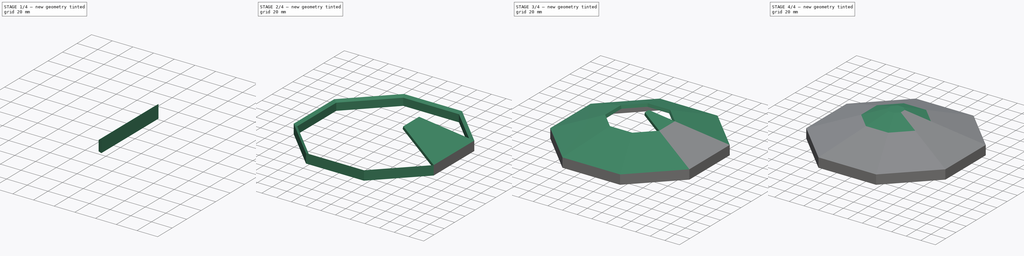
[diagram: build sequence overview — one tinted view per stage of 4, left to right]
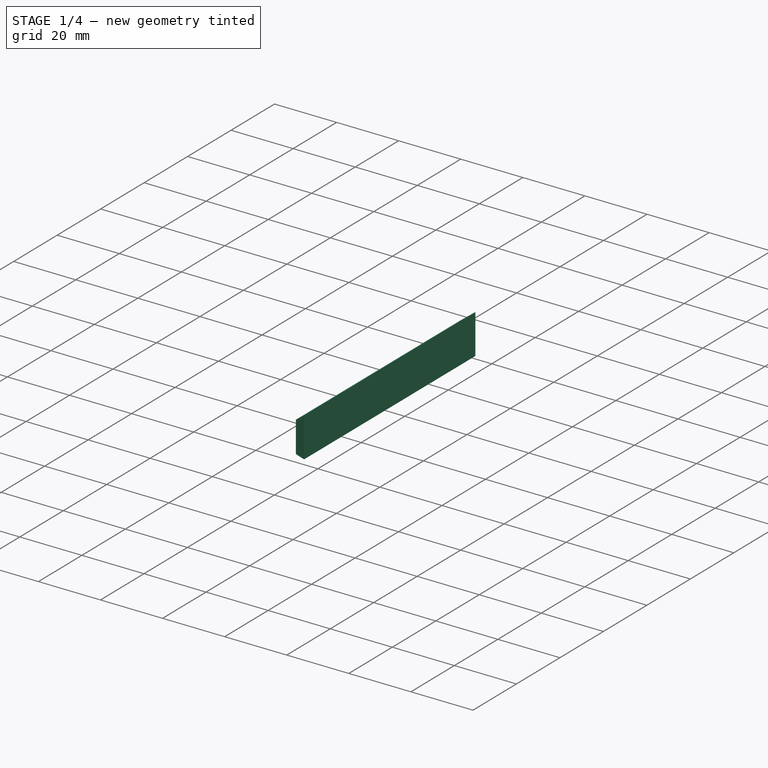
[diagram: stage 1 of 4 — iso view after this stage's code; geometry added in this stage tinted green]
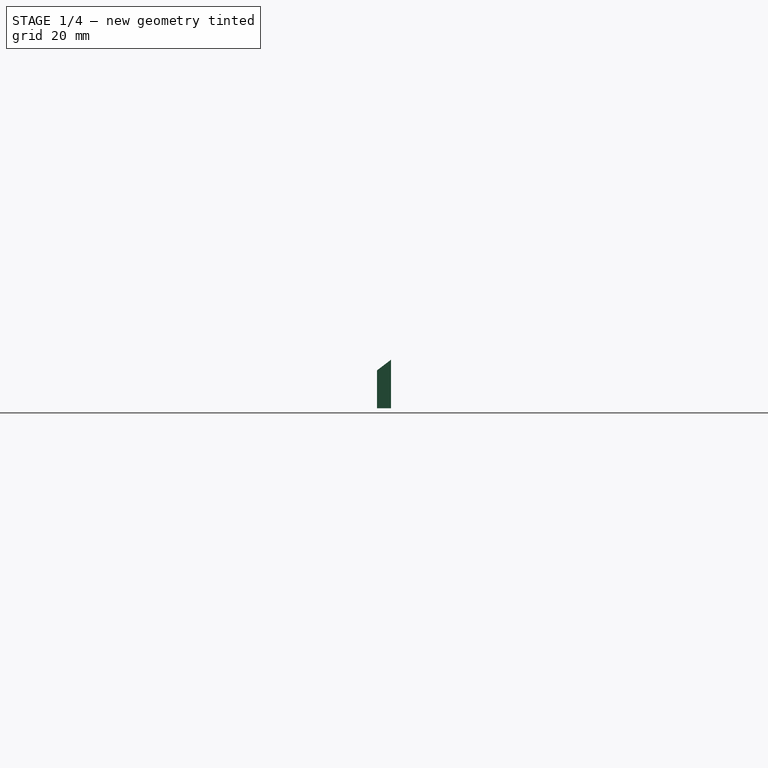
[diagram: stage 1 of 4 — front view after this stage's code; geometry added in this stage tinted green]
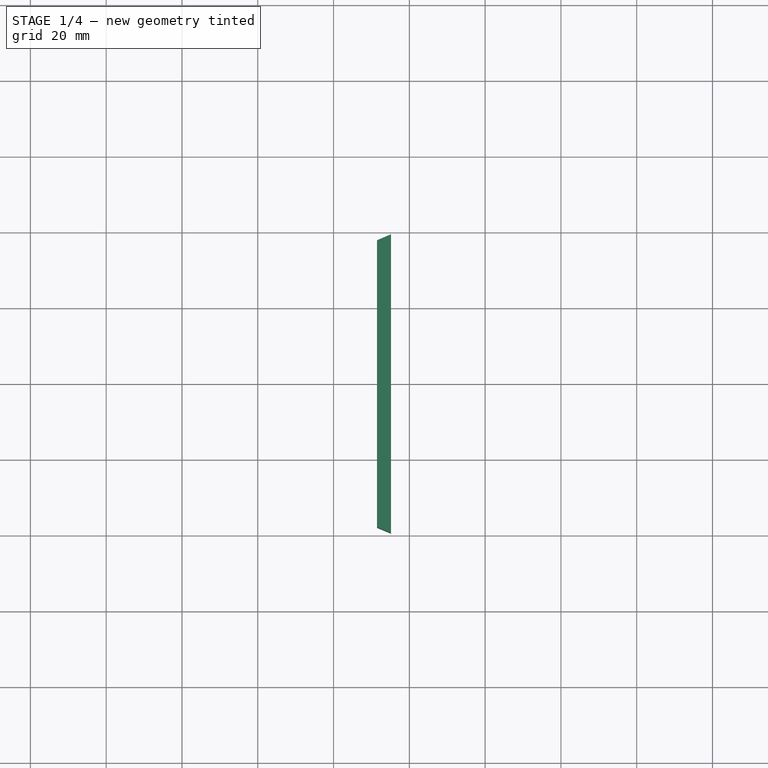
[diagram: stage 1 of 4 — top view after this stage's code; geometry added in this stage tinted green]
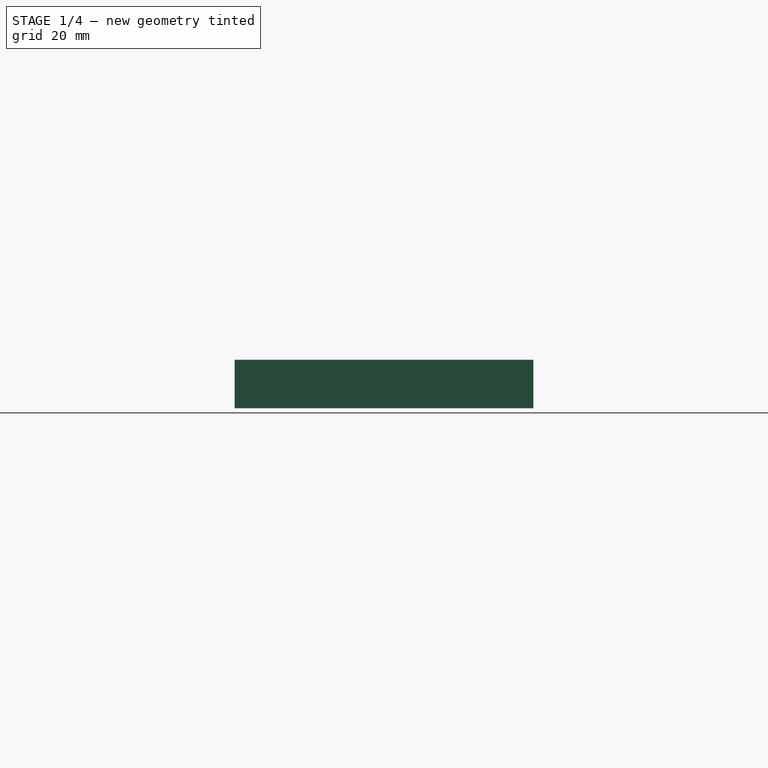
[diagram: stage 1 of 4 — right view after this stage's code; geometry added in this stage tinted green]
FCSTD DOCUMENT  (FreeCAD 0.18R16093 (Git))
Label: cover
License: All rights reserved
LicenseURL: http://en.wikipedia.org/wiki/All_rights_reserved
objects: Sketcher::SketchObject×11, PartDesign::Plane×8, PartDesign::ShapeBinder×8, PartDesign::Body×6, PartDesign::AdditiveLoft×4, PartDesign::FeatureBase×4, App::Part×3, Part::FeaturePython×3, Spreadsheet::Sheet×1, PartDesign::PolarPattern×1
note: 49 computed .brp shape members not serialized (recipe doc carries the construction recipe); baked Part::Feature solids carry a one-line shape summary decoded from their .brp

FEATURE [Sketcher::SketchObject] Sketch  label="cover_base_XY"
  MapMode = 5
  Support = -> [XY_Plane002]
  expr: Constraints[103] = cover_base.top_cone_flat_radius
  expr: Constraints[77] = cover_base.top_cone_radius
  expr: Constraints[51] = cover_base.inner_radius
  expr: Constraints[25] = cover_base.housing_radius
  sketch-geometry (42):
    g0: LineSegment StartX=92.388 StartY=38.2683 StartZ=0 EndX=38.2683 EndY=92.388 EndZ=0
    g1: LineSegment StartX=38.2683 StartY=92.388 StartZ=0 EndX=-38.2683 EndY=92.388 EndZ=0
    g2: LineSegment StartX=-38.2683 StartY=92.388 StartZ=0 EndX=-92.388 EndY=38.2683 EndZ=0
    g3: LineSegment StartX=-92.388 StartY=38.2683 StartZ=0 EndX=-92.388 EndY=-38.2683 EndZ=0
    g4: LineSegment StartX=-92.388 StartY=-38.2683 StartZ=0 EndX=-38.2683 EndY=-92.388 EndZ=0
    g5: LineSegment StartX=-38.2683 StartY=-92.388 StartZ=0 EndX=38.2683 EndY=-92.388 EndZ=0
    g6: LineSegment StartX=38.2683 StartY=-92.388 StartZ=0 EndX=92.388 EndY=-38.2683 EndZ=0
    g7: LineSegment StartX=92.388 StartY=-38.2683 StartZ=0 EndX=92.388 EndY=38.2683 EndZ=0
    g8: Circle [constr] CenterX=0 CenterY=0 CenterZ=0 NormalX=0 NormalY=0 NormalZ=1 AngleXU=0 Radius=100
    g9: LineSegment StartX=93.3118 StartY=38.651 StartZ=0 EndX=38.651 EndY=93.3118 EndZ=0
    g10: LineSegment StartX=38.651 StartY=93.3118 StartZ=0 EndX=-38.651 EndY=93.3118 EndZ=0
    g11: LineSegment StartX=-38.651 StartY=93.3118 StartZ=0 EndX=-93.3118 EndY=38.651 EndZ=0
    g12: LineSegment StartX=-93.3118 StartY=38.651 StartZ=0 EndX=-93.3118 EndY=-38.651 EndZ=0
    g13: LineSegment StartX=-93.3118 StartY=-38.651 StartZ=0 EndX=-38.651 EndY=-93.3118 EndZ=0
    g14: LineSegment StartX=-38.651 StartY=-93.3118 StartZ=0 EndX=38.651 EndY=-93.3118 EndZ=0
    g15: LineSegment StartX=38.651 StartY=-93.3118 StartZ=0 EndX=93.3118 EndY=-38.651 EndZ=0
    g16: LineSegment StartX=93.3118 StartY=-38.651 StartZ=0 EndX=93.3118 EndY=38.651 EndZ=0
    g17: Circle [constr] CenterX=0 CenterY=0 CenterZ=0 NormalX=0 NormalY=0 NormalZ=1 AngleXU=0 Radius=101
    g18: LineSegment StartX=36.9552 StartY=15.3073 StartZ=0 EndX=15.3073 EndY=36.9552 EndZ=0
    g19: LineSegment StartX=15.3073 StartY=36.9552 StartZ=0 EndX=-15.3073 EndY=36.9552 EndZ=0
    g20: LineSegment StartX=-15.3073 StartY=36.9552 StartZ=0 EndX=-36.9552 EndY=15.3073 EndZ=0
    g21: LineSegment StartX=-36.9552 StartY=15.3073 StartZ=0 EndX=-36.9552 EndY=-15.3073 EndZ=0
    g22: LineSegment StartX=-36.9552 StartY=-15.3073 StartZ=0 EndX=-15.3073 EndY=-36.9552 EndZ=0
    g23: LineSegment StartX=-15.3073 StartY=-36.9552 StartZ=0 EndX=15.3073 EndY=-36.9552 EndZ=0
    g24: LineSegment StartX=15.3073 StartY=-36.9552 StartZ=0 EndX=36.9552 EndY=-15.3073 EndZ=0
    g25: LineSegment StartX=36.9552 StartY=-15.3073 StartZ=0 EndX=36.9552 EndY=15.3073 EndZ=0
    g26: Circle [constr] CenterX=0 CenterY=0 CenterZ=0 NormalX=0 NormalY=0 NormalZ=1 AngleXU=0 Radius=40
    g27: LineSegment StartX=9.2388 StartY=3.82683 StartZ=0 EndX=3.82683 EndY=9.2388 EndZ=0
    g28: LineSegment StartX=3.82683 StartY=9.2388 StartZ=0 EndX=-3.82683 EndY=9.2388 EndZ=0
    g29: LineSegment StartX=-3.82683 StartY=9.2388 StartZ=0 EndX=-9.2388 EndY=3.82683 EndZ=0
    g30: LineSegment StartX=-9.2388 StartY=3.82683 StartZ=0 EndX=-9.2388 EndY=-3.82683 EndZ=0
    g31: LineSegment StartX=-9.2388 StartY=-3.82683 StartZ=0 EndX=-3.82683 EndY=-9.2388 EndZ=0
    g32: LineSegment StartX=-3.82683 StartY=-9.2388 StartZ=0 EndX=3.82683 EndY=-9.2388 EndZ=0
    g33: LineSegment StartX=3.82683 StartY=-9.2388 StartZ=0 EndX=9.2388 EndY=-3.82683 EndZ=0
    g34: LineSegment StartX=9.2388 StartY=-3.82683 StartZ=0 EndX=9.2388 EndY=3.82683 EndZ=0
    g35: Circle [constr] CenterX=0 CenterY=0 CenterZ=0 NormalX=0 NormalY=0 NormalZ=1 AngleXU=0 Radius=10
    g36: LineSegment StartX=9.2388 StartY=-3.82683 StartZ=0 EndX=36.9552 EndY=-15.3073 EndZ=0
    g37: LineSegment StartX=9.2388 StartY=3.82683 StartZ=0 EndX=36.9552 EndY=15.3073 EndZ=0
    g38: LineSegment StartX=0 StartY=0 StartZ=0 EndX=9.2388 EndY=-3.82683 EndZ=0
    g39: LineSegment StartX=0 StartY=0 StartZ=0 EndX=9.2388 EndY=3.82683 EndZ=0
    g40: LineSegment StartX=36.9552 StartY=15.3073 StartZ=0 EndX=43.2957 EndY=0 EndZ=0
    g41: LineSegment StartX=43.2957 StartY=0 StartZ=0 EndX=36.9552 EndY=-15.3073 EndZ=0
  constraints (94):
    c: Coincident(g0,g1)
    c: Coincident(g1,g2)
    c: Coincident(g2,g3)
    c: Coincident(g3,g4)
    c: Coincident(g4,g5)
    c: Coincident(g5,g6)
    c: Coincident(g6,g7)
    c: Coincident(g7,g0)
    c: Equal(g0, g1-g7) x7
    c: PointOnObject(g0,g8)
    c: PointOnObject(g1,g8)
    c: PointOnObject(g2,g8)
    c: PointOnObject(g3,g8)
    c: PointOnObject(g4,g8)
    c: PointOnObject(g5,g8)
    c: PointOnObject(g6,g8)
    c: PointOnObject(g7,g8)
    c: Coincident(g8,g-1)
    c: Horizontal(g1)
    c: Radius(g8) = 100
    c: Coincident(g9,g10)
    c: Coincident(g10,g11)
    c: Coincident(g11,g12)
    c: Coincident(g12,g13)
    c: Coincident(g13,g14)
    c: Coincident(g14,g15)
    c: Coincident(g15,g16)
    c: Coincident(g16,g9)
    c: Equal(g9, g10-g16) x7
    c: PointOnObject(g9,g17)
    c: PointOnObject(g10,g17)
    c: PointOnObject(g11,g17)
    c: PointOnObject(g12,g17)
    c: PointOnObject(g13,g17)
    c: PointOnObject(g14,g17)
    c: PointOnObject(g15,g17)
    c: PointOnObject(g16,g17)
    c: Coincident(g17,g-1)
    c: Horizontal(g10)
    c: Radius(g17) = 101
    c: Coincident(g18,g19)
    c: Coincident(g19,g20)
    c: Coincident(g20,g21)
    c: Coincident(g21,g22)
    c: Coincident(g22,g23)
    c: Coincident(g23,g24)
    c: Coincident(g24,g25)
    c: Coincident(g25,g18)
    c: Equal(g18, g19-g25) x7
    c: PointOnObject(g18,g26)
    c: PointOnObject(g19,g26)
    c: PointOnObject(g20,g26)
    c: PointOnObject(g21,g26)
    c: PointOnObject(g22,g26)
    c: PointOnObject(g23,g26)
    c: PointOnObject(g24,g26)
    c: PointOnObject(g25,g26)
    c: Coincident(g26,g-1)
    c: Horizontal(g19)
    c: Radius(g26) = 40
    c: Coincident(g27,g28)
    c: Coincident(g28,g29)
    c: Coincident(g29,g30)
    c: Coincident(g30,g31)
    c: Coincident(g31,g32)
    c: Coincident(g32,g33)
    c: Coincident(g33,g34)
    c: Coincident(g34,g27)
    c: Equal(g27, g28-g34) x7
    c: PointOnObject(g27,g35)
    c: PointOnObject(g28,g35)
    c: PointOnObject(g29,g35)
    c: PointOnObject(g30,g35)
    c: PointOnObject(g31,g35)
    c: PointOnObject(g32,g35)
    c: PointOnObject(g33,g35)
    c: PointOnObject(g34,g35)
    c: Coincident(g35,g-1)
    c: Horizontal(g28)
    c: Radius(g35) = 10
    c: DistanceX(g28,g28) = 7.65367
    c: Coincident(g36,g33)
    c: Coincident(g36,g24)
    c: Coincident(g37,g18)
    c: Coincident(g27,g37)
    c: Coincident(g38,g-1)
    c: Coincident(g38,g33)
    c: Coincident(g39,g38)
    c: Coincident(g39,g27)
    c: Coincident(g40,g41)
    c: Perpendicular(g36,g41)
    c: Coincident(g41,g24)
    c: Coincident(g40,g18)
    c: Perpendicular(g37,g40)
FEATURE [Spreadsheet::Sheet] Spreadsheet  label="cover_base"
  cells = A1=housing_radius; B1(housing_radius)==100mm; A2=allowance; B2(allowance)==1mm; A3=inner_radius; B3(inner_radius)==cover_base.housing_radius + cover_base.allowance; A5=material_thickness; B5(material_thickness)==4mm; A7=overlap_height_in; B7(overlap_height_in)==10mm; A9=top_cone_radius; B9(top_cone_radius)==40mm; A10=top_cone_flat_radius; B10(top_cone_flat_radius)==10mm; A11=cone_angle; B11(cone_angle)==20°
FEATURE [Sketcher::SketchObject] Sketch001  label="cover_base_ZX"
  ExternalGeometry = -> [Sketch]
  MapMode = 49
  Placement = pos=(0,0,0) rot=(0.962637,-0.19148,-0.19148;1.60887rad)
  Support = -> [Sketch,Z_Axis002]
  expr: Constraints[57] = cover_base.material_thickness
  expr: Constraints[56] = cover_base.top_cone_radius
  expr: Constraints[55] = cover_base.top_cone_flat_radius
  expr: Constraints[37] = cover_base.material_thickness
  expr: Constraints[35] = cover_base.overlap_height_in
  expr: Constraints[29] = 1
  expr: Constraints[58] = cover_base.material_thickness
  expr: Constraints[20] = cover_base.housing_radius
  expr: Constraints[33] = cover_base.cone_angle
  sketch-geometry (21):
    g0: LineSegment StartX=99 StartY=-9 StartZ=0 EndX=99 EndY=1 EndZ=0
    g1: LineSegment StartX=99 StartY=1 StartZ=0 EndX=38.6319 EndY=22.9722 EndZ=0
    g2: LineSegment StartX=38.6319 StartY=22.9722 StartZ=0 EndX=9.29469 EndY=33.6501 EndZ=0
    g3: LineSegment StartX=9.29469 StartY=33.6501 StartZ=0 EndX=10 EndY=37.6501 EndZ=0
    g4: LineSegment StartX=10 StartY=37.6501 StartZ=0 EndX=40 EndY=26.731 EndZ=0
    g5: LineSegment StartX=40 StartY=26.731 StartZ=0 EndX=103 EndY=3.80083 EndZ=0
    g6: LineSegment StartX=103 StartY=3.80083 StartZ=0 EndX=103 EndY=-9 EndZ=0
    g7: LineSegment StartX=103 StartY=-9 StartZ=0 EndX=99 EndY=-9 EndZ=0
    g8: LineSegment StartX=38.6319 StartY=22.9722 StartZ=0 EndX=40 EndY=26.731 EndZ=0
    g9: LineSegment [constr] StartX=0 StartY=0 StartZ=0 EndX=100 EndY=0 EndZ=0
    g10: LineSegment [constr] StartX=100 StartY=1 StartZ=0 EndX=99 EndY=1 EndZ=0
    g11: LineSegment [constr] StartX=99 StartY=1 StartZ=0 EndX=99 EndY=0 EndZ=0
    g12: LineSegment [constr] StartX=99 StartY=0 StartZ=0 EndX=100 EndY=0 EndZ=0
    g13: LineSegment [constr] StartX=100 StartY=0 StartZ=0 EndX=100 EndY=1 EndZ=0
    g14: LineSegment StartX=10 StartY=37.6501 StartZ=0 EndX=0 EndY=37.6501 EndZ=0
    g15: LineSegment StartX=0 StartY=37.6501 StartZ=0 EndX=0 EndY=33.6501 EndZ=0
    g16: LineSegment StartX=0 StartY=33.6501 StartZ=0 EndX=9.29469 EndY=33.6501 EndZ=0
    g17: LineSegment [constr] StartX=0 StartY=33.6501 StartZ=0 EndX=0 EndY=0 EndZ=0
    g18: LineSegment [constr] StartX=10 StartY=0 StartZ=0 EndX=10 EndY=37.6501 EndZ=0
    g19: LineSegment [constr] StartX=40 StartY=0 StartZ=0 EndX=40 EndY=26.731 EndZ=0
    g20: LineSegment StartX=99 StartY=1 StartZ=0 EndX=103 EndY=3.80083 EndZ=0
  constraints (63):
    c: Vertical(g0)
    c: Coincident(g0,g1)
    c: Coincident(g1,g2)
    c: Coincident(g2,g3)
    c: Coincident(g3,g4)
    c: Coincident(g4,g5)
    c: Coincident(g5,g6)
    c: Vertical(g6)
    c: Coincident(g6,g7)
    c: Coincident(g0,g7)
    c: Horizontal(g7)
    c: Parallel(g1,g5)
    c: Coincident(g8,g4)
    c: Coincident(g1,g8)
    c: Parallel(g2,g1)
    c: Parallel(g4,g2)
    c: Distance(g4) = 31.9253
    c: Perpendicular(g4,g8)
    c: Coincident(g9,g-1)
    c: Horizontal(g9)
    c: DistanceX(g9,g9) = 100
    c: Coincident(g10,g11)
    c: Coincident(g11,g12)
    c: Coincident(g12,g13)
    c: Coincident(g13,g10)
    c: Horizontal(g10)
    c: Horizontal(g12)
    c: Vertical(g11)
    c: Vertical(g13)
    c: DistanceY(g13,g13) = 1
    c: Equal(g13,g10)
    c: Coincident(g12,g9)
    c: Coincident(g10,g0)
    c: Angle(g1,g9) = 0.349066
    c: DistanceY(g6,g6) = 12.8008
    c: DistanceY(g0,g0) = 10
    c: Distance(g5) = 67.0432
    c: Distance(g8) = 4
    c: Horizontal(g14)
    c: Coincident(g14,g15)
    c: Vertical(g15)
    c: Coincident(g15,g16)
    c: Horizontal(g16)
    c: Coincident(g16,g2)
    c: Coincident(g14,g3)
    c: Coincident(g17,g15)
    c: Coincident(g17,g-1)
    c: Vertical(g17)
    c: Vertical(g18)
    c: Vertical(g19)
    c: Coincident(g4,g19)
    c: Coincident(g18,g3)
    c: DistanceX(g14,g14) = 10
    c: PointOnObject(g19,g9)
    c: PointOnObject(g18,g9)
    c: DistanceX(g-1,g18) = 10
    c: DistanceX(g-1,g19) = 40
    c: DistanceX(g7,g7) = 4
    c: DistanceY(g15,g15) = 4
    c: Angle(g14,g3) = 1.39626
    c: Coincident(g20,g0)
    c: Coincident(g20,g5)
    c: Angle(g5,g20) = 0.959931
FEATURE [PartDesign::Plane] DatumPlane  label="cover_top_cone_flat_out_DatumPlane"
  Length = 24
  MapMode = 50
  Placement = pos=(1.7588e-12,4.2498e-12,37.6501) rot=(1,0,0;3.14159rad)
  ResizeMode = 0
  Support = -> [Sketch001,X_Axis003]
  Width = 24
FEATURE [Sketcher::SketchObject] Sketch002  label="cover_top_cone_flat_out_Sketch"
  MapMode = 5
  Placement = pos=(1.7588e-12,4.2498e-12,37.6501) rot=(1,0,0;3.14159rad)
  Support = -> [DatumPlane]
  expr: Constraints[24] = cover_base.top_cone_flat_radius
  sketch-geometry (9):
    g0: LineSegment StartX=9.2388 StartY=3.82683 StartZ=0 EndX=3.82683 EndY=9.2388 EndZ=0
    g1: LineSegment StartX=3.82683 StartY=9.2388 StartZ=0 EndX=-3.82683 EndY=9.2388 EndZ=0
    g2: LineSegment StartX=-3.82683 StartY=9.2388 StartZ=0 EndX=-9.2388 EndY=3.82683 EndZ=0
    g3: LineSegment StartX=-9.2388 StartY=3.82683 StartZ=0 EndX=-9.2388 EndY=-3.82683 EndZ=0
    g4: LineSegment StartX=-9.2388 StartY=-3.82683 StartZ=0 EndX=-3.82683 EndY=-9.2388 EndZ=0
    g5: LineSegment StartX=-3.82683 StartY=-9.2388 StartZ=0 EndX=3.82683 EndY=-9.2388 EndZ=0
    g6: LineSegment StartX=3.82683 StartY=-9.2388 StartZ=0 EndX=9.2388 EndY=-3.82683 EndZ=0
    g7: LineSegment StartX=9.2388 StartY=-3.82683 StartZ=0 EndX=9.2388 EndY=3.82683 EndZ=0
    g8: Circle [constr] CenterX=0 CenterY=0 CenterZ=0 NormalX=0 NormalY=0 NormalZ=1 AngleXU=0 Radius=10
  constraints (20):
    c: Coincident(g0,g1)
    c: Coincident(g1,g2)
    c: Coincident(g2,g3)
    c: Coincident(g3,g4)
    c: Coincident(g4,g5)
    c: Coincident(g5,g6)
    c: Coincident(g6,g7)
    c: Coincident(g7,g0)
    c: Equal(g0, g1-g7) x7
    c: PointOnObject(g0,g8)
    c: PointOnObject(g1,g8)
    c: PointOnObject(g2,g8)
    c: PointOnObject(g3,g8)
    c: PointOnObject(g4,g8)
    c: PointOnObject(g5,g8)
    c: PointOnObject(g6,g8)
    c: PointOnObject(g7,g8)
    c: Horizontal(g1)
    c: Radius(g8) = 10
    c: Coincident(g8,g-1)
FEATURE [Sketcher::SketchObject] Sketch004  label="cover_base_ZX2"
  ExternalGeometry = -> [Sketch]
  MapMode = 49
  Placement = pos=(0,0,0) rot=(0.962637,0.19148,0.19148;1.60887rad)
  Support = -> [Sketch,Z_Axis002]
  expr: Constraints[57] = cover_base.top_cone_radius
  expr: Constraints[56] = cover_base.top_cone_flat_radius
  expr: Constraints[37] = cover_base.material_thickness
  expr: Constraints[35] = cover_base.overlap_height_in
  expr: Constraints[29] = 1
  expr: Constraints[58] = cover_base.material_thickness
  expr: Constraints[20] = cover_base.housing_radius
  expr: Constraints[33] = cover_base.cone_angle
  sketch-geometry (21):
    g0: LineSegment StartX=99 StartY=-9 StartZ=0 EndX=99 EndY=1 EndZ=0
    g1: LineSegment StartX=99 StartY=1 StartZ=0 EndX=38.6319 EndY=22.9722 EndZ=0
    g2: LineSegment StartX=38.6319 StartY=22.9722 StartZ=0 EndX=9.29469 EndY=33.6501 EndZ=0
    g3: LineSegment StartX=9.29469 StartY=33.6501 StartZ=0 EndX=10 EndY=37.6501 EndZ=0
    g4: LineSegment StartX=10 StartY=37.6501 StartZ=0 EndX=40 EndY=26.731 EndZ=0
    g5: LineSegment StartX=40 StartY=26.731 StartZ=0 EndX=103 EndY=3.80083 EndZ=0
    g6: LineSegment StartX=103 StartY=3.80083 StartZ=0 EndX=103 EndY=-9 EndZ=0
    g7: LineSegment StartX=103 StartY=-9 StartZ=0 EndX=99 EndY=-9 EndZ=0
    g8: LineSegment StartX=38.6319 StartY=22.9722 StartZ=0 EndX=40 EndY=26.731 EndZ=0
    g9: LineSegment [constr] StartX=0 StartY=0 StartZ=0 EndX=100 EndY=0 EndZ=0
    g10: LineSegment [constr] StartX=100 StartY=1 StartZ=0 EndX=99 EndY=1 EndZ=0
    g11: LineSegment [constr] StartX=99 StartY=1 StartZ=0 EndX=99 EndY=0 EndZ=0
    g12: LineSegment [constr] StartX=99 StartY=0 StartZ=0 EndX=100 EndY=0 EndZ=0
    g13: LineSegment [constr] StartX=100 StartY=0 StartZ=0 EndX=100 EndY=1 EndZ=0
    g14: LineSegment StartX=10 StartY=37.6501 StartZ=0 EndX=0 EndY=37.6501 EndZ=0
    g15: LineSegment StartX=0 StartY=37.6501 StartZ=0 EndX=0 EndY=33.6501 EndZ=0
    g16: LineSegment StartX=0 StartY=33.6501 StartZ=0 EndX=9.29469 EndY=33.6501 EndZ=0
    g17: LineSegment [constr] StartX=0 StartY=33.6501 StartZ=0 EndX=0 EndY=0 EndZ=0
    g18: LineSegment [constr] StartX=10 StartY=0 StartZ=0 EndX=10 EndY=37.6501 EndZ=0
    g19: LineSegment [constr] StartX=40 StartY=0 StartZ=0 EndX=40 EndY=26.731 EndZ=0
    g20: LineSegment StartX=99 StartY=1 StartZ=0 EndX=103 EndY=3.80083 EndZ=0
  constraints (61):
    c: Vertical(g0)
    c: Coincident(g0,g1)
    c: Coincident(g1,g2)
    c: Coincident(g2,g3)
    c: Coincident(g3,g4)
    c: Coincident(g4,g5)
    c: Coincident(g5,g6)
    c: Vertical(g6)
    c: Coincident(g6,g7)
    c: Coincident(g0,g7)
    c: Horizontal(g7)
    c: Parallel(g1,g5)
    c: Coincident(g8,g4)
    c: Coincident(g1,g8)
    c: Parallel(g2,g1)
    c: Parallel(g4,g2)
    c: Distance(g4) = 31.9253
    c: Perpendicular(g4,g8)
    c: Coincident(g9,g-1)
    c: Horizontal(g9)
    c: DistanceX(g9,g9) = 100
    c: Coincident(g10,g11)
    c: Coincident(g11,g12)
    c: Coincident(g12,g13)
    c: Coincident(g13,g10)
    c: Horizontal(g10)
    c: Horizontal(g12)
    c: Vertical(g11)
    c: Vertical(g13)
    c: DistanceY(g13,g13) = 1
    c: Equal(g13,g10)
    c: Coincident(g12,g9)
    c: Coincident(g10,g0)
    c: Angle(g1,g9) = 0.349066
    c: DistanceY(g6,g6) = 12.8008
    c: DistanceY(g0,g0) = 10
    c: Distance(g5) = 67.0432
    c: Distance(g8) = 4
    c: Equal(g7,g8)
    c: Horizontal(g14)
    c: Coincident(g14,g15)
    c: Vertical(g15)
    c: Coincident(g15,g16)
    c: Horizontal(g16)
    c: Coincident(g16,g2)
    c: Coincident(g14,g3)
    c: Coincident(g17,g15)
    c: Coincident(g17,g-1)
    c: Vertical(g17)
    c: Vertical(g18)
    c: Vertical(g19)
    c: Coincident(g4,g19)
    c: Coincident(g18,g3)
    c: DistanceX(g14,g14) = 10
    c: PointOnObject(g19,g9)
    c: PointOnObject(g18,g9)
    c: DistanceX(g-1,g18) = 10
    c: DistanceX(g-1,g19) = 40
    c: DistanceY(g15,g15) = 4
    c: Coincident(g20,g0)
    c: Coincident(g20,g5)
FEATURE [PartDesign::Body] Body001  label="cover_helper"
  Group = -> [Sketch,Sketch001,Sketch004]
  Origin = -> Origin002
FEATURE [PartDesign::Plane] DatumPlane001  label="cover_top_cone_out_DatumPlane"
  Length = 39.2807
  MapMode = 13
  Placement = pos=(18.4776,-5.10245,34.0104) rot=(0.183381,0.183381,0.965786;1.6056rad)
  ResizeMode = 0
  Support = -> [Sketch001,Sketch004]
  Width = 69.9936
FEATURE [PartDesign::ShapeBinder] ShapeBinder001  label="profile_2_ShapeBinder"
  Placement = pos=(0,0,0) rot=(0.962637,0.19148,0.19148;1.60887rad)
  Support = -> [Sketch004]
  TraceSupport = false
FEATURE [PartDesign::ShapeBinder] ShapeBinder  label="profile_1_ShapeBinder"
  Placement = pos=(0,0,0) rot=(0.962637,-0.19148,-0.19148;1.60887rad)
  Support = -> [Sketch001]
  TraceSupport = false
FEATURE [Sketcher::SketchObject] Sketch005  label="cover_top_cone_sketch_out"
  ExternalGeometry = -> [ShapeBinder,ShapeBinder001]
  MapMode = 5
  Placement = pos=(18.4776,-5.10245,34.0104) rot=(0.183381,0.183381,0.965786;1.6056rad)
  Support = -> [DatumPlane001]
  sketch-geometry (4):
    g0: LineSegment StartX=1.27561 StartY=9.92989 StartZ=0 EndX=8.92928 EndY=9.92989 EndZ=0
    g1: LineSegment StartX=8.92928 StartY=9.92989 StartZ=0 EndX=20.4098 EndY=-19.8598 EndZ=0
    g2: LineSegment StartX=20.4098 StartY=-19.8598 StartZ=0 EndX=-10.2049 EndY=-19.8598 EndZ=0
    g3: LineSegment StartX=-10.2049 StartY=-19.8598 StartZ=0 EndX=1.27561 EndY=9.92989 EndZ=0
  constraints (8):
    c: Coincident(g0,g1)
    c: Coincident(g1,g2)
    c: Coincident(g2,g3)
    c: Coincident(g3,g0)
    c: Coincident(g2,g-3)
    c: Coincident(g1,g-4)
    c: Coincident(g0,g-4)
    c: Coincident(g0,g-3)
FEATURE [PartDesign::Plane] DatumPlane002  label="cover_top_cone_in_DatumPlane"
  Length = 39.2807
  MapMode = 13
  Placement = pos=(26.6566,-1.18564,26.5315) rot=(0.183381,0.183381,0.965786;1.6056rad)
  ResizeMode = 0
  Support = -> [Sketch001,Sketch004]
  Width = 69.9936
FEATURE [Sketcher::SketchObject] Sketch006  label="cover_top_cone_sketch_in"
  ExternalGeometry = -> [ShapeBinder,ShapeBinder001]
  MapMode = 5
  Placement = pos=(26.6566,-1.18564,26.5315) rot=(0.183381,0.183381,0.965786;1.6056rad)
  Support = -> [DatumPlane002]
  sketch-geometry (4):
    g0: LineSegment StartX=4.74257 StartY=19.421 StartZ=0 EndX=-2.37128 EndY=19.421 EndZ=0
    g1: LineSegment StartX=-2.37128 StartY=19.421 StartZ=0 EndX=-13.5982 EndY=-9.71052 EndZ=0
    g2: LineSegment StartX=-13.5982 StartY=-9.71052 StartZ=0 EndX=15.9694 EndY=-9.71052 EndZ=0
    g3: LineSegment StartX=15.9694 StartY=-9.71052 StartZ=0 EndX=4.74257 EndY=19.421 EndZ=0
  constraints (8):
    c: Coincident(g0,g1)
    c: Coincident(g1,g2)
    c: Coincident(g2,g3)
    c: Coincident(g3,g0)
    c: Coincident(g-3,g1)
    c: Coincident(g2,g-4)
    c: Coincident(g-4,g0)
    c: Coincident(g0,g-3)
FEATURE [PartDesign::AdditiveLoft] AdditiveLoft  label="cover_top_cone_AdditiveLoft"
  Closed = false
  Placement = pos=(18.4776,-5.10245,34.0104) rot=(0.183381,0.183381,0.965786;1.6056rad)
  Profile = -> Sketch005
  Ruled = false
  Sections = -> [Sketch006]
FEATURE [PartDesign::Body] Body003  label="cover_lower_cone_body"
  Group = -> [ShapeBinder004,ShapeBinder005,DatumPlane004,DatumPlane005,Sketch008,Sketch009,AdditiveLoft002]
  Origin = -> Origin005
  Tip = -> AdditiveLoft002
FEATURE [PartDesign::ShapeBinder] ShapeBinder006  label="profile_2_ShapeBinder003"
  Placement = pos=(0,0,0) rot=(0.962637,0.19148,0.19148;1.60887rad)
  Support = -> [Sketch004]
  TraceSupport = false
FEATURE [PartDesign::ShapeBinder] ShapeBinder007  label="profile_1_ShapeBinder003"
  Placement = pos=(0,0,0) rot=(0.962637,-0.19148,-0.19148;1.60887rad)
  Support = -> [Sketch001]
  TraceSupport = false
FEATURE [PartDesign::Plane] DatumPlane006  label="cover_overlap_out_DatumPlane"
  Length = 27.4412
  MapMode = 13
  Placement = pos=(95.1596,-13.1388,-0.466113) rot=(0.57735,0.57735,0.57735;2.0944rad)
  ResizeMode = 0
  Support = -> [Sketch001,Sketch004]
  Width = 24.3024
FEATURE [PartDesign::Plane] DatumPlane007  label="cover_overlap_in_DatumPlane"
  Length = 26.8833
  MapMode = 13
  Placement = pos=(91.4641,-12.6286,-5.66667) rot=(0.57735,0.57735,0.57735;2.0944rad)
  ResizeMode = 0
  Support = -> [Sketch001,Sketch004]
  Width = 24.2547
FEATURE [Sketcher::SketchObject] Sketch010  label="cover_overlap_out_Sketch"
  ExternalGeometry = -> [ShapeBinder007,ShapeBinder006]
  MapMode = 5
  Placement = pos=(95.1596,-13.1388,-0.466113) rot=(0.57735,0.57735,0.57735;2.0944rad)
  Support = -> [DatumPlane006]
  sketch-geometry (4):
    g0: LineSegment StartX=-26.2776 StartY=4.26694 StartZ=0 EndX=52.5552 EndY=4.26694 EndZ=0
    g1: LineSegment StartX=52.5552 StartY=4.26694 StartZ=0 EndX=52.5552 EndY=-8.53389 EndZ=0
    g2: LineSegment StartX=52.5552 StartY=-8.53389 StartZ=0 EndX=-26.2776 EndY=-8.53389 EndZ=0
    g3: LineSegment StartX=-26.2776 StartY=-8.53389 StartZ=0 EndX=-26.2776 EndY=4.26694 EndZ=0
  constraints (8):
    c: Coincident(g-3,g0)
    c: Coincident(g0,g-4)
    c: Coincident(g0,g1)
    c: Coincident(g1,g-4)
    c: Coincident(g1,g2)
    c: Coincident(g2,g-3)
    c: Coincident(g2,g3)
    c: Coincident(g3,g0)
FEATURE [Sketcher::SketchObject] Sketch011  label="cover_overlap_in_Sketch"
  ExternalGeometry = -> [ShapeBinder007,ShapeBinder006]
  MapMode = 5
  Placement = pos=(91.4641,-12.6286,-5.66667) rot=(0.57735,0.57735,0.57735;2.0944rad)
  Support = -> [DatumPlane007]
  sketch-geometry (4):
    g0: LineSegment StartX=-25.2571 StartY=6.66667 StartZ=0 EndX=50.5142 EndY=6.66667 EndZ=0
    g1: LineSegment StartX=50.5142 StartY=6.66667 StartZ=0 EndX=50.5142 EndY=-3.33333 EndZ=0
    g2: LineSegment StartX=50.5142 StartY=-3.33333 StartZ=0 EndX=-25.2571 EndY=-3.33333 EndZ=0
    g3: LineSegment StartX=-25.2571 StartY=-3.33333 StartZ=0 EndX=-25.2571 EndY=6.66667 EndZ=0
  constraints (8):
    c: Coincident(g-3,g0)
    c: Coincident(g0,g1)
    c: Coincident(g1,g-4)
    c: Coincident(g1,g2)
    c: Coincident(g2,g-3)
    c: Coincident(g2,g3)
    c: Coincident(g3,g0)
    c: Coincident(g0,g-4)
FEATURE [PartDesign::AdditiveLoft] AdditiveLoft003  label="cover_overlap_AdditiveLoft"
  Closed = false
  Placement = pos=(95.1596,-13.1388,-0.466113) rot=(0.57735,0.57735,0.57735;2.0944rad)
  Profile = -> Sketch010
  Ruled = false
  Sections = -> [Sketch011]
FEATURE [PartDesign::PolarPattern] PolarPattern
  Angle = 360
  Axis = -> Z_Axis006
  BaseFeature = -> AdditiveLoft003
  Occurrences = 6
  Originals = -> [AdditiveLoft]
  Placement = pos=(95.1596,-13.1388,-0.466113) rot=(0.57735,0.57735,0.57735;2.0944rad)
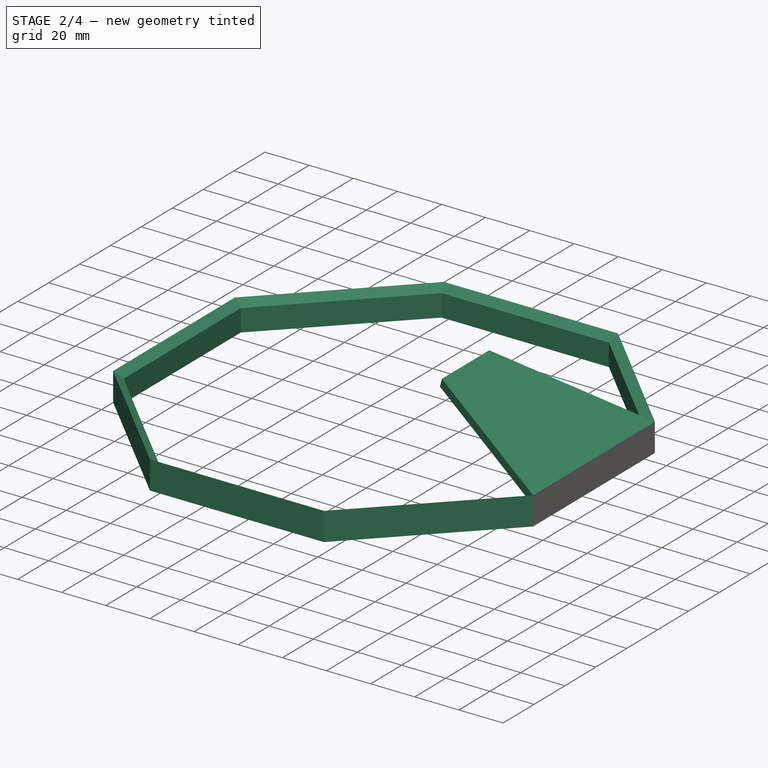
[diagram: stage 2 of 4 — iso view after this stage's code; geometry added in this stage tinted green]
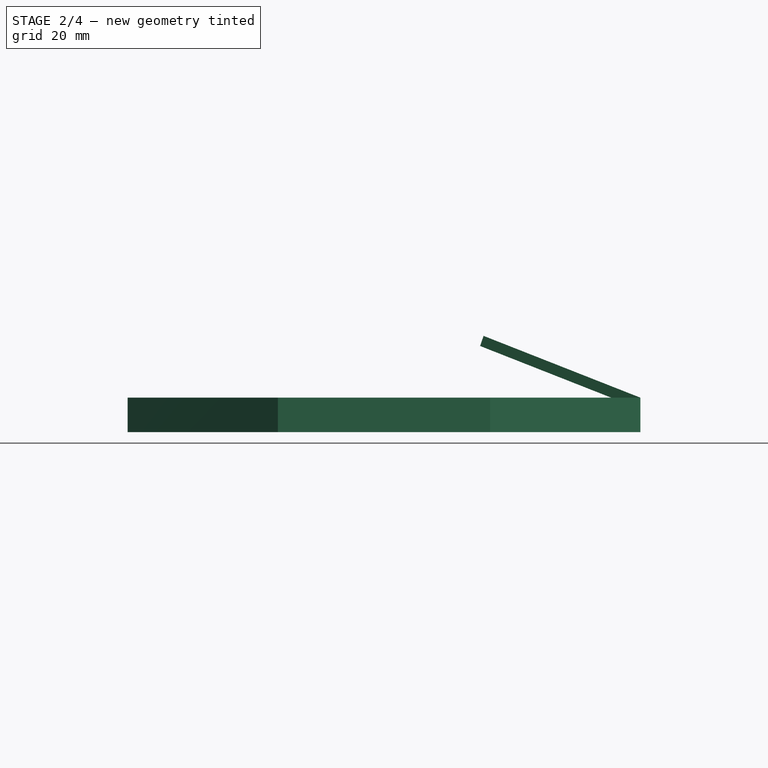
[diagram: stage 2 of 4 — front view after this stage's code; geometry added in this stage tinted green]
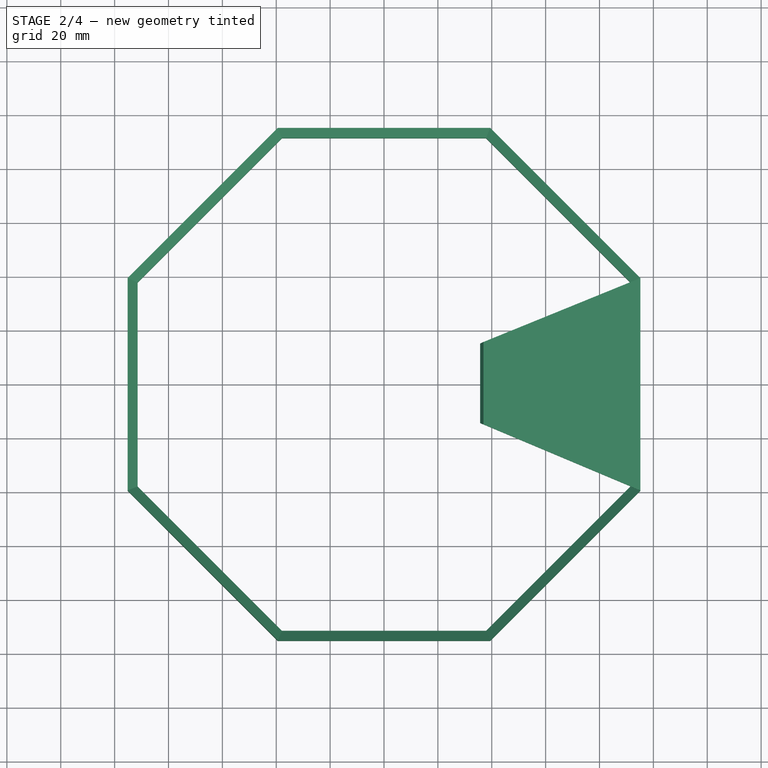
[diagram: stage 2 of 4 — top view after this stage's code; geometry added in this stage tinted green]
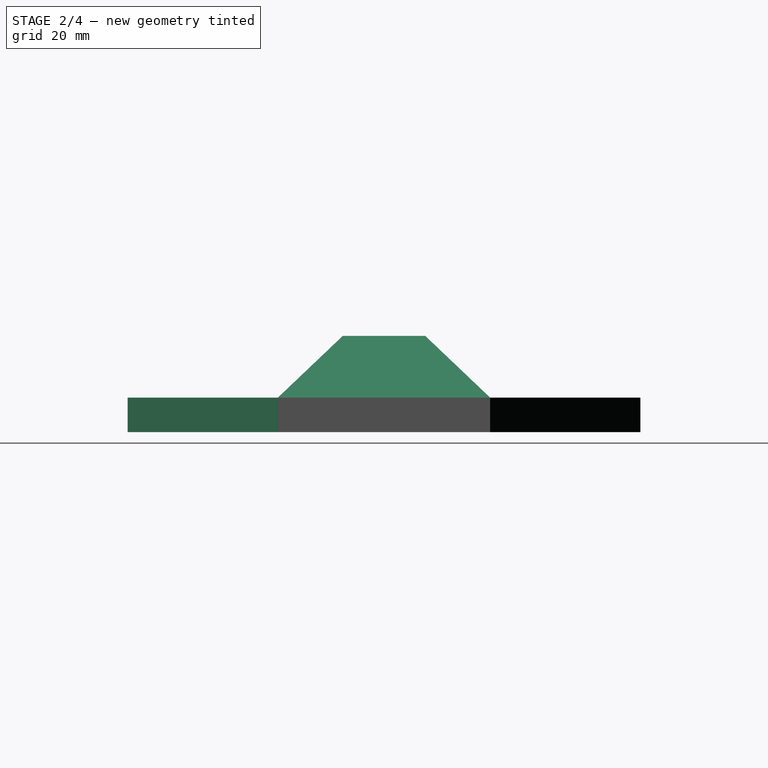
[diagram: stage 2 of 4 — right view after this stage's code; geometry added in this stage tinted green]
FEATURE [PartDesign::Body] Body002  label="cover_top_cone_flat_body"
  Group = -> [DatumPlane,Sketch002,ShapeBinder002,ShapeBinder003,DatumPlane003,Sketch007,AdditiveLoft001]
  Origin = -> Origin003
  Tip = -> AdditiveLoft001
FEATURE [PartDesign::ShapeBinder] ShapeBinder004  label="profile_2_ShapeBinder002"
  Placement = pos=(0,0,0) rot=(0.962637,0.19148,0.19148;1.60887rad)
  Support = -> [Sketch004]
  TraceSupport = false
FEATURE [PartDesign::ShapeBinder] ShapeBinder005  label="profile_1_ShapeBinder002"
  Placement = pos=(0,0,0) rot=(0.962637,-0.19148,-0.19148;1.60887rad)
  Support = -> [Sketch001]
  TraceSupport = false
FEATURE [PartDesign::Plane] DatumPlane004  label="cover_lower_cone_out_DatumPlane"
  Length = 97.5672
  MapMode = 13
  Placement = pos=(56.3567,-13.1388,19.0876) rot=(0.183381,0.183381,0.965786;1.6056rad)
  ResizeMode = 0
  Support = -> [Sketch001,Sketch004]
  Width = 130.038
FEATURE [PartDesign::Plane] DatumPlane005  label="cover_lower_cone_in_DatumPlane"
  Length = 97.5672
  MapMode = 13
  Placement = pos=(72.8731,-4.92793,8.32406) rot=(0.183381,0.183381,0.965786;1.6056rad)
  ResizeMode = 0
  Support = -> [Sketch001,Sketch004]
  Width = 130.038
FEATURE [Sketcher::SketchObject] Sketch008  label="cover_lower_cone_out_sketch"
  ExternalGeometry = -> [ShapeBinder005,ShapeBinder004]
  MapMode = 5
  Placement = pos=(56.3567,-13.1388,19.0876) rot=(0.183381,0.183381,0.965786;1.6056rad)
  Support = -> [DatumPlane004]
  sketch-geometry (4):
    g0: LineSegment StartX=-2.16854 StartY=20.8528 StartZ=0 EndX=28.4461 EndY=20.8528 EndZ=0
    g1: LineSegment StartX=28.4461 StartY=20.8528 StartZ=0 EndX=52.5552 EndY=-41.7056 EndZ=0
    g2: LineSegment StartX=52.5552 StartY=-41.7056 StartZ=0 EndX=-26.2776 EndY=-41.7056 EndZ=0
    g3: LineSegment StartX=-26.2776 StartY=-41.7056 StartZ=0 EndX=-2.16854 EndY=20.8528 EndZ=0
  constraints (8):
    c: Coincident(g-3,g0)
    c: Coincident(g0,g-4)
    c: Coincident(g0,g1)
    c: Coincident(g1,g-4)
    c: Coincident(g1,g2)
    c: Coincident(g2,g-3)
    c: Coincident(g2,g3)
    c: Coincident(g3,g0)
FEATURE [Sketcher::SketchObject] Sketch009  label="cover_lower_cone_in_sketch"
  ExternalGeometry = -> [ShapeBinder005,ShapeBinder004]
  MapMode = 5
  Placement = pos=(72.8731,-4.92793,8.32406) rot=(0.183381,0.183381,0.965786;1.6056rad)
  Support = -> [DatumPlane005]
  sketch-geometry (4):
    g0: LineSegment StartX=-9.85586 StartY=39.9632 StartZ=0 EndX=19.7117 EndY=39.9632 EndZ=0
    g1: LineSegment StartX=19.7117 StartY=39.9632 StartZ=0 EndX=42.8136 EndY=-19.9816 EndZ=0
    g2: LineSegment StartX=42.8136 StartY=-19.9816 StartZ=0 EndX=-32.9577 EndY=-19.9816 EndZ=0
    g3: LineSegment StartX=-32.9577 StartY=-19.9816 StartZ=0 EndX=-9.85586 EndY=39.9632 EndZ=0
  constraints (8):
    c: Coincident(g-3,g0)
    c: Coincident(g0,g-4)
    c: Coincident(g0,g1)
    c: Coincident(g1,g-4)
    c: Coincident(g1,g2)
    c: Coincident(g2,g-3)
    c: Coincident(g2,g3)
    c: Coincident(g3,g0)
FEATURE [PartDesign::AdditiveLoft] AdditiveLoft002  label="cover_lower_cone_AdditiveLoft"
  Closed = false
  Placement = pos=(56.3567,-13.1388,19.0876) rot=(0.183381,0.183381,0.965786;1.6056rad)
  Profile = -> Sketch008
  Ruled = false
  Sections = -> [Sketch009]
FEATURE [PartDesign::Body] Body004  label="cover_overlap_body"
  Group = -> [ShapeBinder006,ShapeBinder007,DatumPlane006,DatumPlane007,Sketch010,Sketch011,AdditiveLoft003,PolarPattern]
  Origin = -> Origin006
  Tip = -> AdditiveLoft003
FEATURE [App::Part] Part  label="cover_segment"
  Group = -> [Body001,Spreadsheet,Body002,Body,Body003,Body004]
  License = CC BY 3.0
  LicenseURL = http://creativecommons.org/licenses/by/3.0/
  Origin = -> Origin
FEATURE [PartDesign::FeatureBase] Clone003  label="cover_overlap_Clone"
  BaseFeature = -> Body004
FEATURE [Part::FeaturePython] Array002  label="cover_overlap_Array"  # Draft array (typed FeaturePython)
  Angle = 360
  ArrayType = 1
  Axis = (0,0,1)
  Base = -> Clone003
  Center = (0,0,0)
  Fuse = false
  IntervalAxis = (0,0,0)
  IntervalX = (1,0,0)
  IntervalY = (0,1,0)
  IntervalZ = (0,0,1)
  NumberPolar = 8
  NumberX = 2
  NumberY = 2
  NumberZ = 1
FEATURE [App::Part] Part001  label="cover_complete"
  Group = -> [Clone,Clone001,Clone002,Clone003,Array,Array001,Array002]
  License = CC BY 3.0
  LicenseURL = http://creativecommons.org/licenses/by/3.0/
  Origin = -> Origin007
FEATURE [PartDesign::Body] Clone002Body
  Origin = -> Origin009
FEATURE [App::Part] Part002
  Group = -> [Clone002Body]
  Origin = -> Origin008
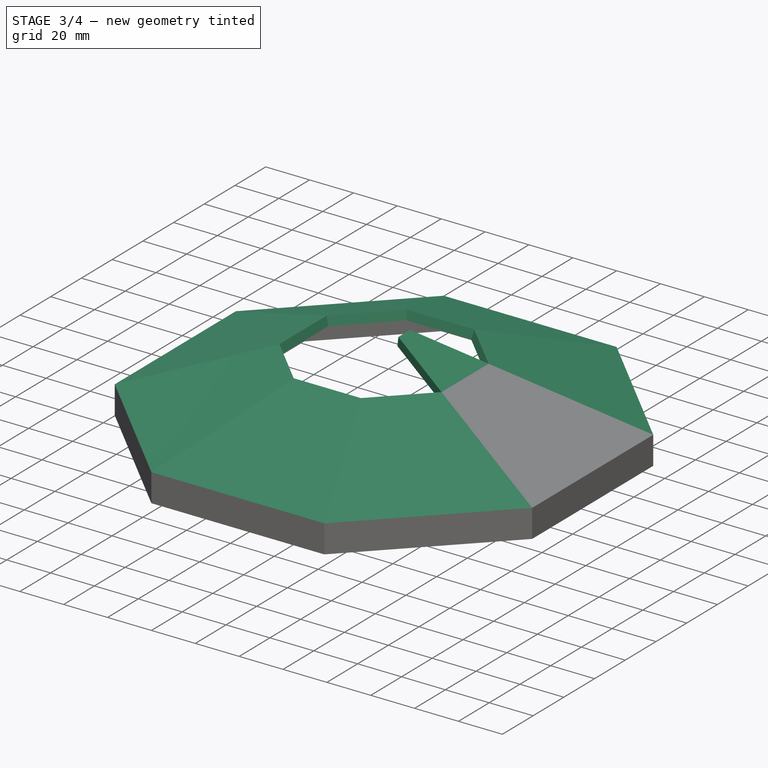
[diagram: stage 3 of 4 — iso view after this stage's code; geometry added in this stage tinted green]
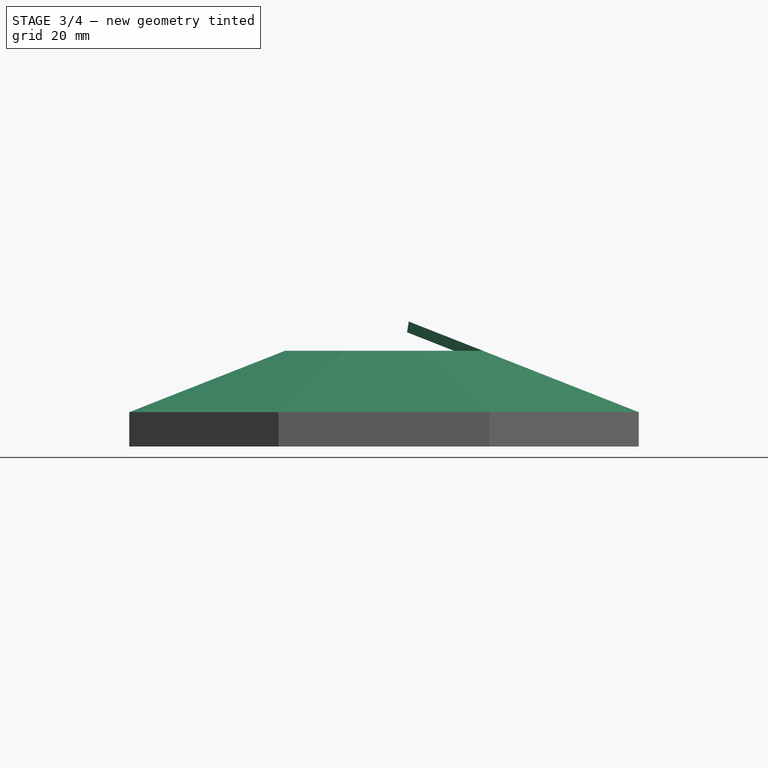
[diagram: stage 3 of 4 — front view after this stage's code; geometry added in this stage tinted green]
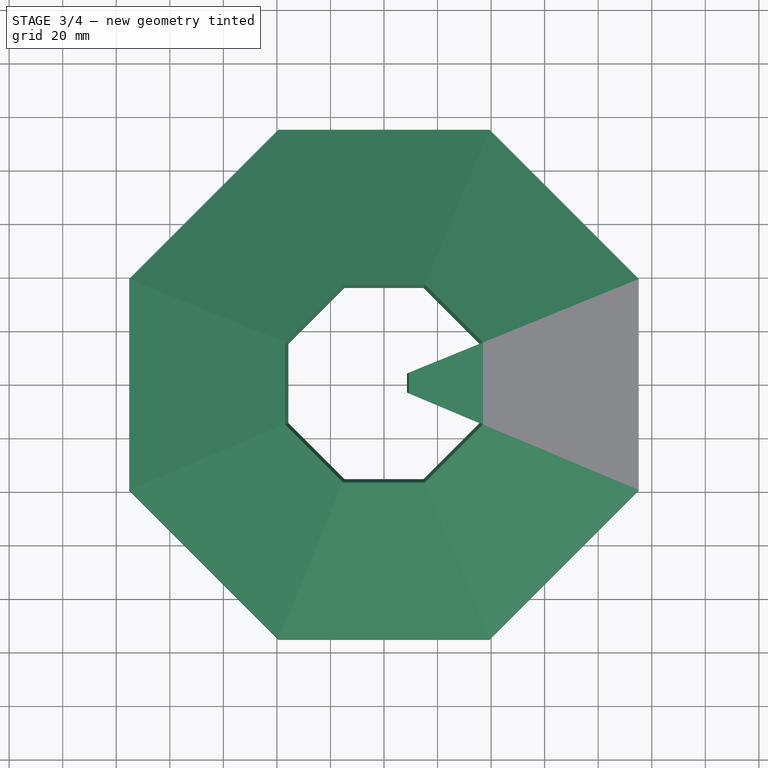
[diagram: stage 3 of 4 — top view after this stage's code; geometry added in this stage tinted green]
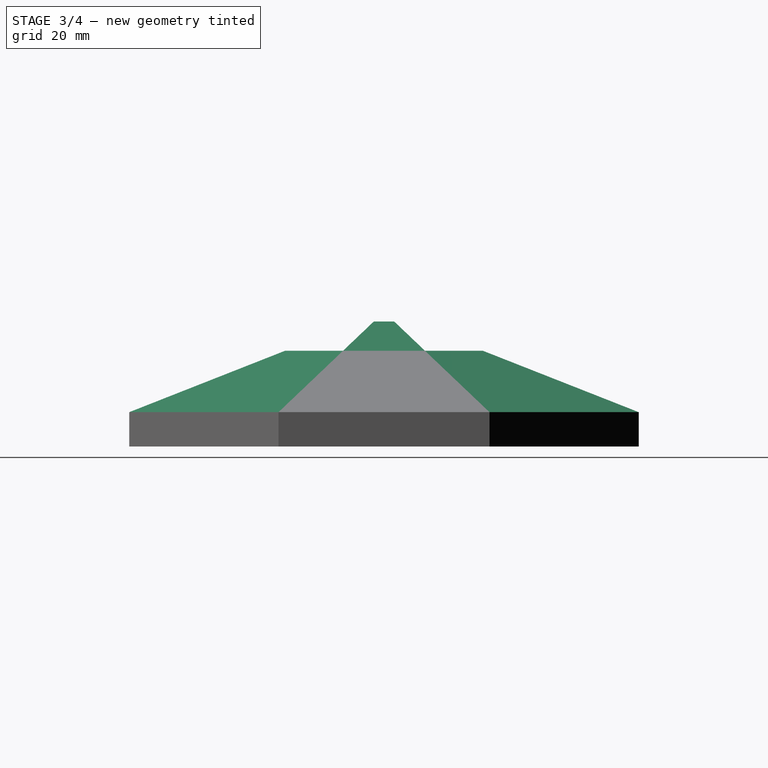
[diagram: stage 3 of 4 — right view after this stage's code; geometry added in this stage tinted green]
FEATURE [PartDesign::FeatureBase] Clone001  label="cover_top_cone_Clone"
  BaseFeature = -> Body
FEATURE [PartDesign::FeatureBase] Clone002  label="cover_lower_cone_Clone"
  BaseFeature = -> Body003
FEATURE [Part::FeaturePython] Array001  label="cover_lower_cone_Array"  # Draft array (typed FeaturePython)
  Angle = 360
  ArrayType = 1
  Axis = (0,0,1)
  Base = -> Clone002
  Center = (0,0,0)
  Fuse = false
  IntervalAxis = (0,0,0)
  IntervalX = (1,0,0)
  IntervalY = (0,1,0)
  IntervalZ = (0,0,1)
  NumberPolar = 8
  NumberX = 2
  NumberY = 2
  NumberZ = 1
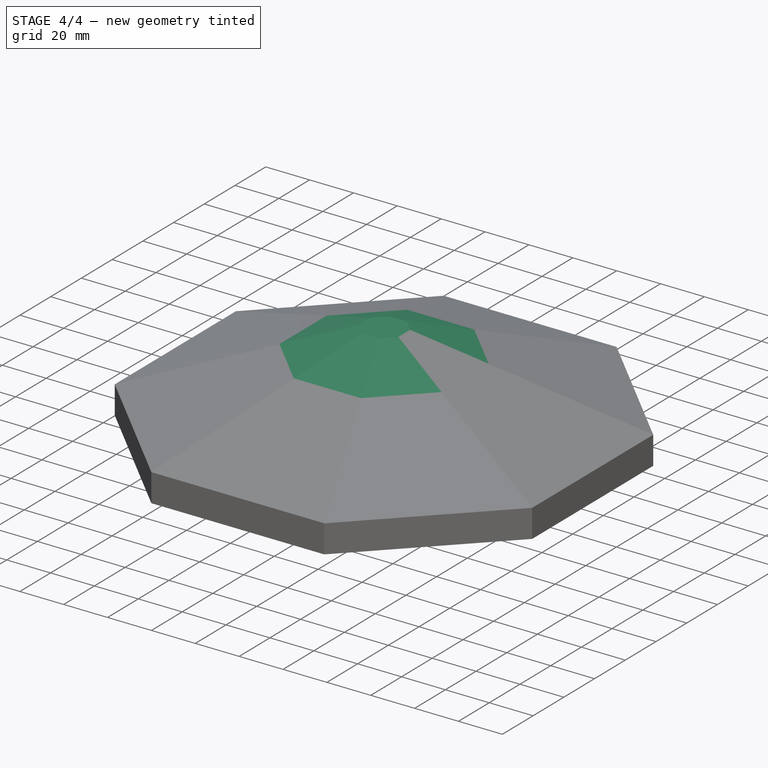
[diagram: stage 4 of 4 — iso view after this stage's code; geometry added in this stage tinted green]
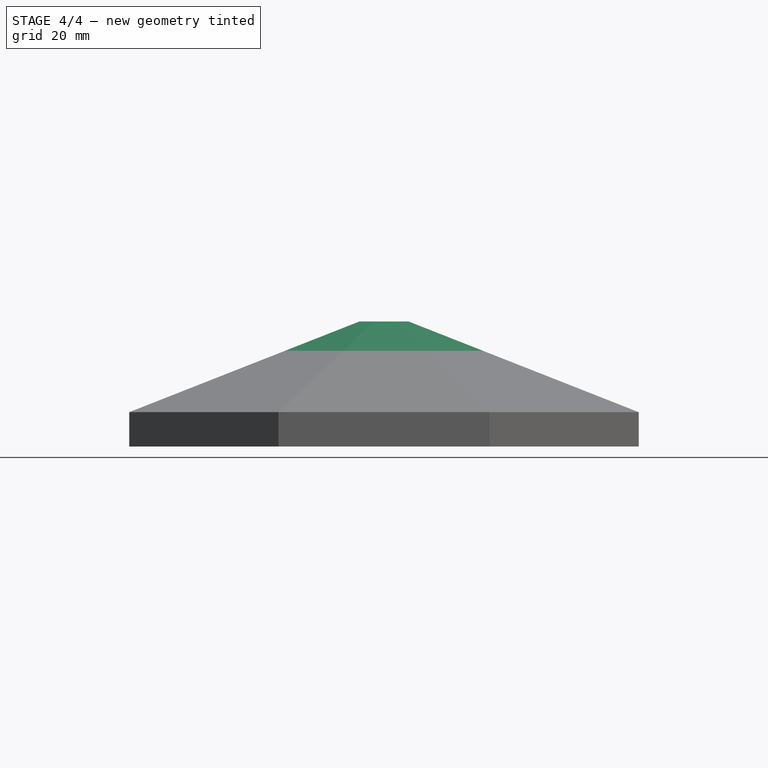
[diagram: stage 4 of 4 — front view after this stage's code; geometry added in this stage tinted green]
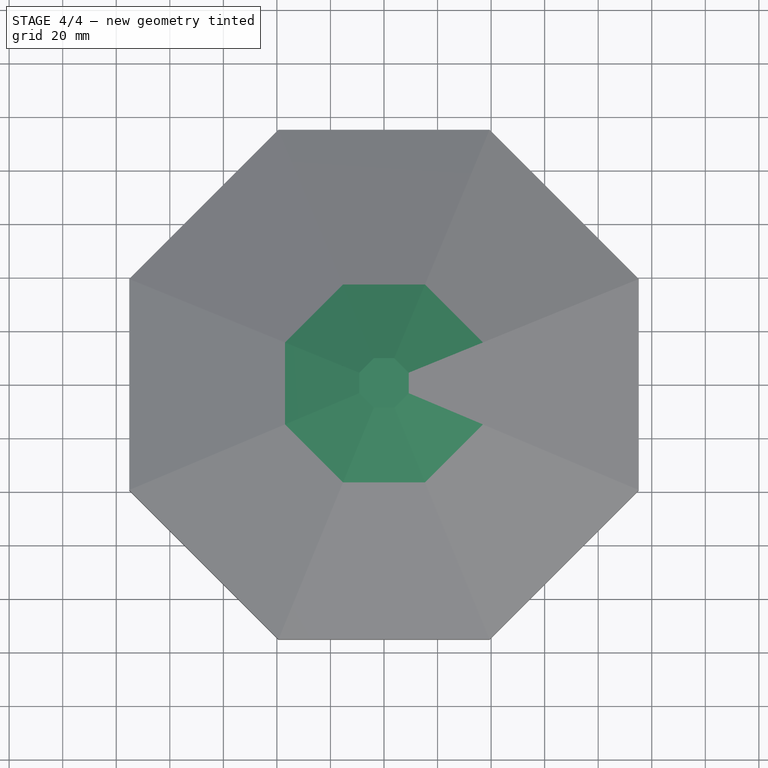
[diagram: stage 4 of 4 — top view after this stage's code; geometry added in this stage tinted green]
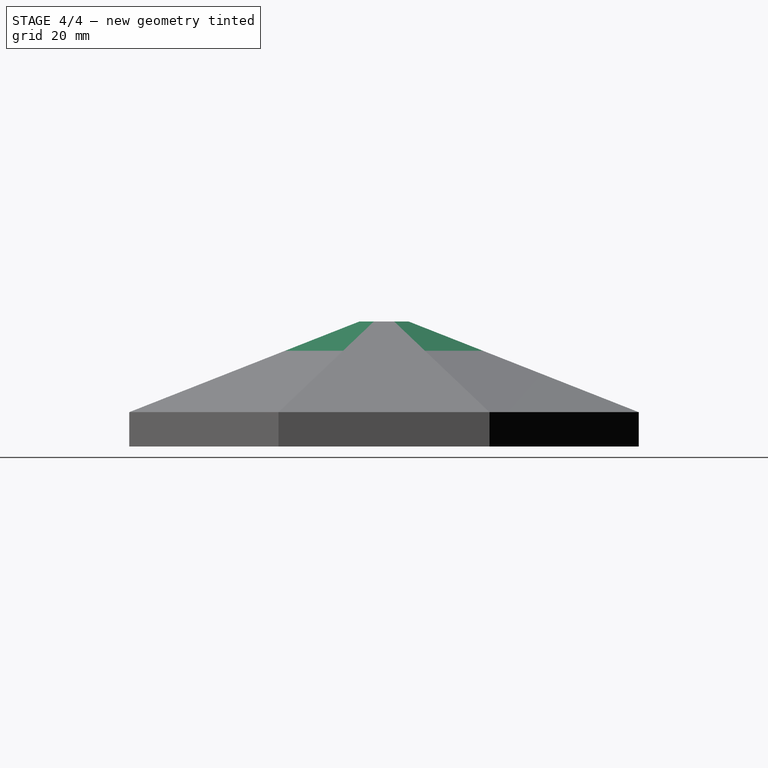
[diagram: stage 4 of 4 — right view after this stage's code; geometry added in this stage tinted green]
FEATURE [PartDesign::Body] Body  label="cover_top_cone_body"
  Group = -> [DatumPlane001,Sketch005,ShapeBinder001,ShapeBinder,DatumPlane002,Sketch006,AdditiveLoft]
  Origin = -> Origin004
  Tip = -> AdditiveLoft
FEATURE [PartDesign::ShapeBinder] ShapeBinder002  label="profile_2_ShapeBinder001"
  Placement = pos=(0,0,0) rot=(0.962637,0.19148,0.19148;1.60887rad)
  Support = -> [Sketch004]
  TraceSupport = false
FEATURE [PartDesign::ShapeBinder] ShapeBinder003  label="profile_1_ShapeBinder001"
  Placement = pos=(0,0,0) rot=(0.962637,-0.19148,-0.19148;1.60887rad)
  Support = -> [Sketch001]
  TraceSupport = false
FEATURE [PartDesign::Plane] DatumPlane003  label="cover_top_cone_flat_in_DatumPlane"
  Length = 24
  MapMode = 52
  Placement = pos=(1.5721e-12,3.7983e-12,33.6501) rot=(0,0,-1;1.5708rad)
  ResizeMode = 0
  Support = -> [Sketch001,X_Axis003]
  Width = 24
FEATURE [Sketcher::SketchObject] Sketch007  label="cover_top_cone_flat_in_Sketch"
  ExternalGeometry = -> [ShapeBinder003,ShapeBinder002]
  MapMode = 5
  Placement = pos=(1.5721e-12,3.7983e-12,33.6501) rot=(0,0,-1;1.5708rad)
  Support = -> [DatumPlane003]
  sketch-geometry (9):
    g0: LineSegment StartX=-3.55692 StartY=8.58718 StartZ=0 EndX=-8.58718 EndY=3.55692 EndZ=0
    g1: LineSegment StartX=-8.58718 StartY=3.55692 StartZ=0 EndX=-8.58718 EndY=-3.55692 EndZ=0
    g2: LineSegment StartX=-8.58718 StartY=-3.55692 StartZ=0 EndX=-3.55692 EndY=-8.58718 EndZ=0
    g3: LineSegment StartX=-3.55692 StartY=-8.58718 StartZ=0 EndX=3.55692 EndY=-8.58718 EndZ=0
    g4: LineSegment StartX=3.55692 StartY=-8.58718 StartZ=0 EndX=8.58718 EndY=-3.55692 EndZ=0
    g5: LineSegment StartX=8.58718 StartY=-3.55692 StartZ=0 EndX=8.58718 EndY=3.55692 EndZ=0
    g6: LineSegment StartX=8.58718 StartY=3.55692 StartZ=0 EndX=3.55692 EndY=8.58718 EndZ=0
    g7: LineSegment StartX=3.55692 StartY=8.58718 StartZ=0 EndX=-3.55692 EndY=8.58718 EndZ=0
    g8: Circle [constr] CenterX=0 CenterY=0 CenterZ=0 NormalX=0 NormalY=0 NormalZ=1 AngleXU=0 Radius=9.29469
  constraints (19):
    c: Coincident(g0,g1)
    c: Coincident(g1,g2)
    c: Coincident(g2,g3)
    c: Coincident(g3,g4)
    c: Coincident(g4,g5)
    c: Coincident(g5,g6)
    c: Coincident(g6,g7)
    c: Coincident(g7,g0)
    c: Equal(g0, g1-g7) x7
    c: PointOnObject(g0,g8)
    c: PointOnObject(g1,g8)
    c: PointOnObject(g2,g8)
    c: PointOnObject(g3,g8)
    c: PointOnObject(g4,g8)
    c: PointOnObject(g5,g8)
    c: PointOnObject(g6,g8)
    c: PointOnObject(g7,g8)
    c: Coincident(g8,g-1)
    c: Coincident(g6,g-3)
FEATURE [PartDesign::AdditiveLoft] AdditiveLoft001  label="cover_top_cone_flat_AdditiveLoft"
  Closed = false
  Placement = pos=(1.761e-12,4.255e-12,37.6501) rot=(1,0,0;3.14159rad)
  Profile = -> Sketch002
  Ruled = false
  Sections = -> [Sketch007]
FEATURE [PartDesign::FeatureBase] Clone  label="cover_top_cone_flat_Clone"
  BaseFeature = -> Body002
FEATURE [Part::FeaturePython] Array  label="cover_top_cone_Array"  # Draft array (typed FeaturePython)
  Angle = 360
  ArrayType = 1
  Axis = (0,0,1)
  Base = -> Clone001
  Center = (0,0,0)
  Fuse = false
  IntervalAxis = (0,0,0)
  IntervalX = (1,0,0)
  IntervalY = (0,1,0)
  IntervalZ = (0,0,1)
  NumberPolar = 8
  NumberX = 2
  NumberY = 2
  NumberZ = 1
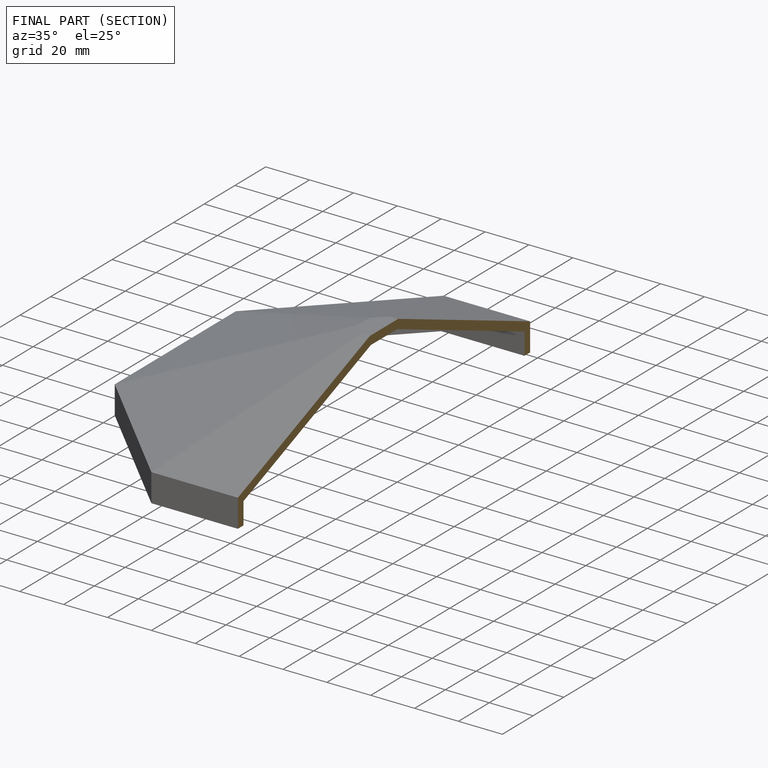
[diagram: finished part — half-section view (interior)]
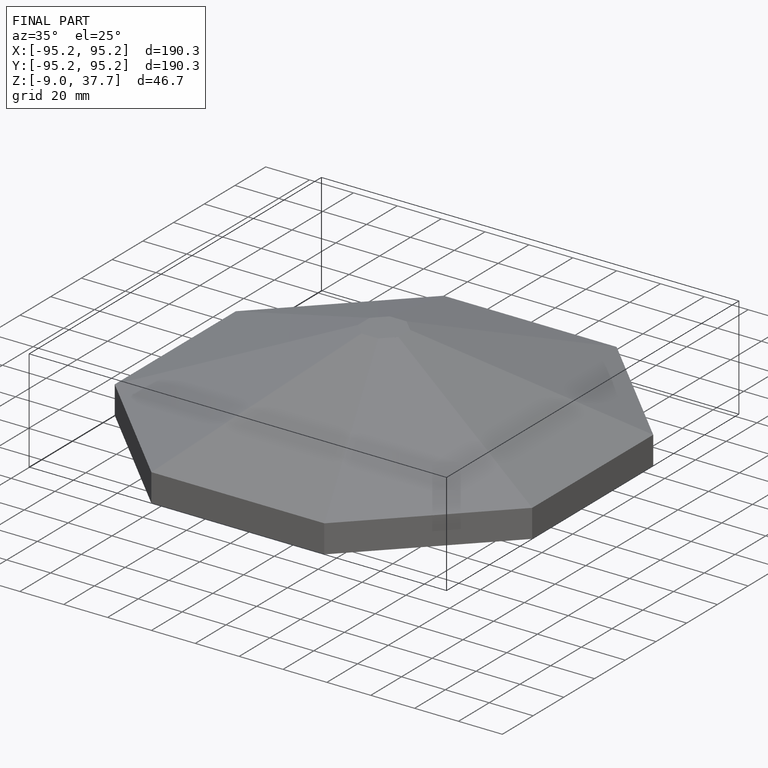
[diagram: finished part — iso view with bounding-box wireframe]
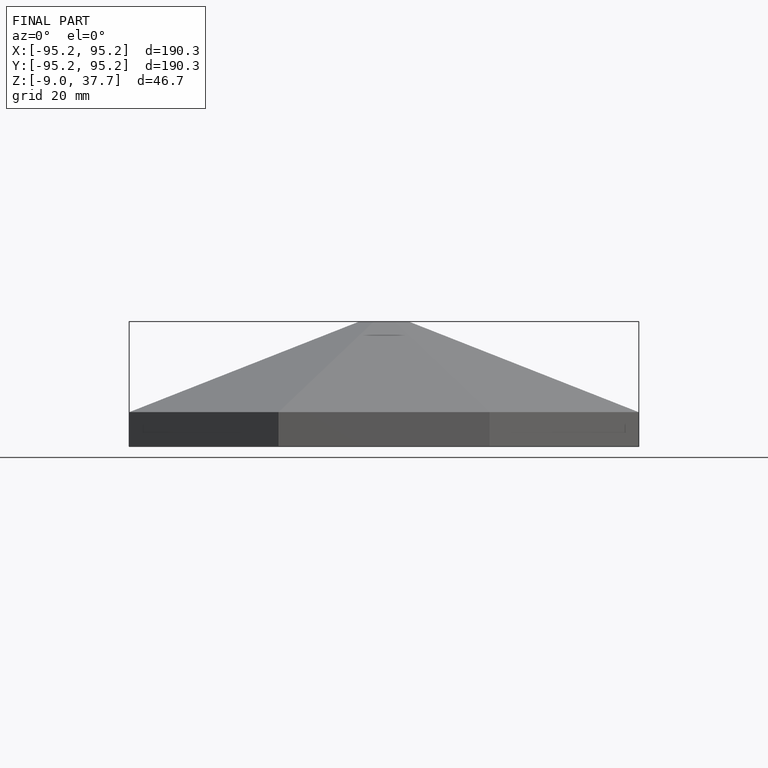
[diagram: finished part — front view with bounding-box wireframe]
